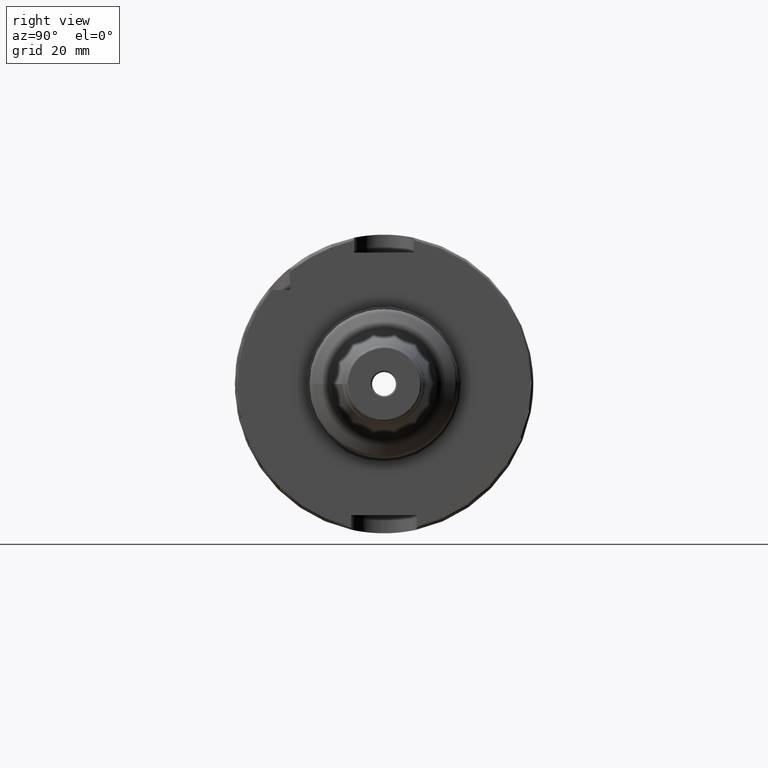
[diagram: clean part render]
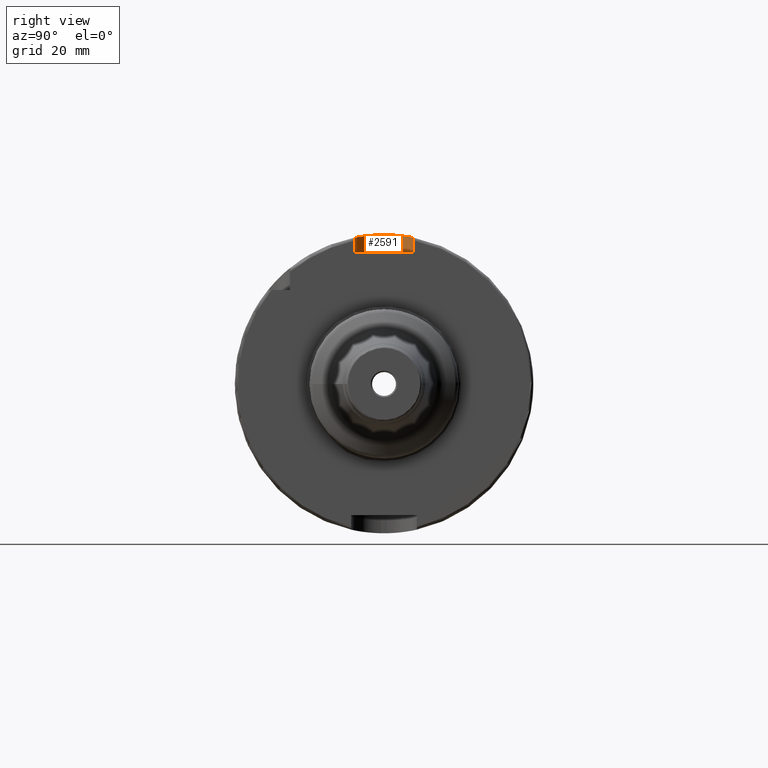
[diagram: same view with one face highlighted and labeled with its STEP entity id]
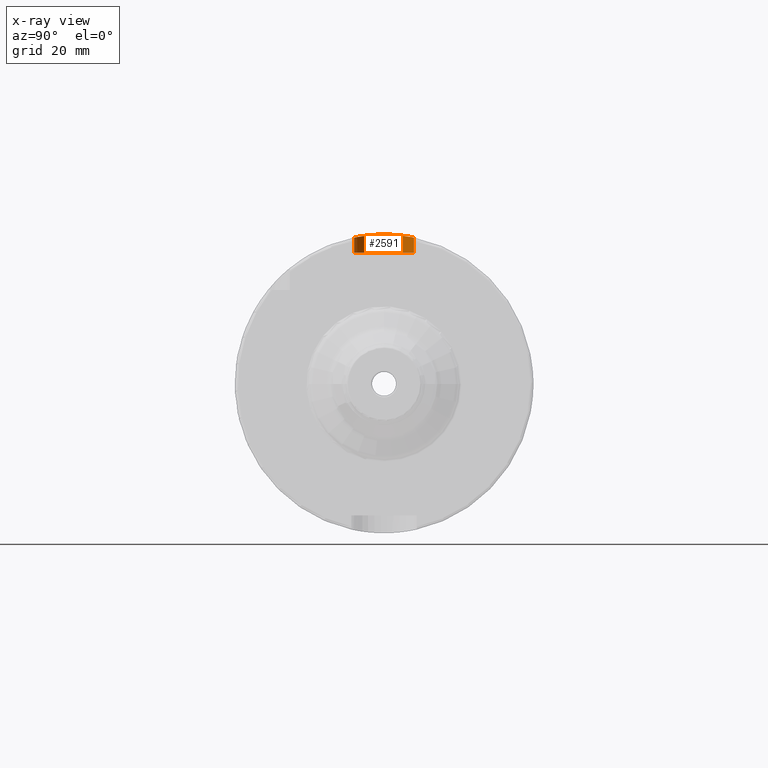
[diagram: x-ray of the same camera — body ghosted, the highlighted face saturated]
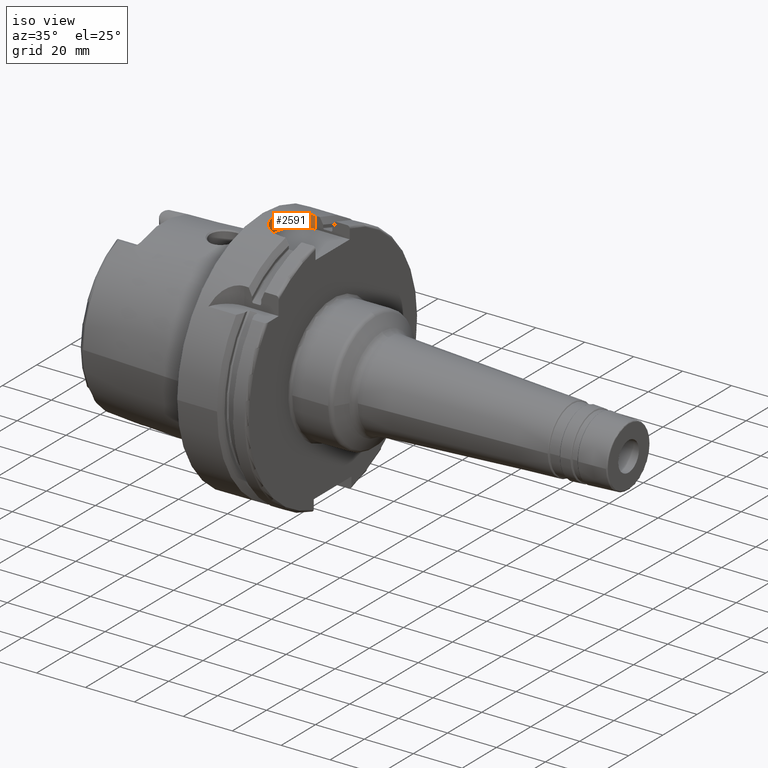
[diagram: same view with one face highlighted and labeled with its STEP entity id]
A machine part, right view. The second image highlights one B-rep face of the part: STEP entity #2591.
The next image is the same camera in x-ray: the body ghosted, the highlighted face saturated — about 0% of this face is hidden behind the body in this view.
A second angle (iso view) of the same face is appended — the face is thin or edge-on in the first view.
In plain terms, the highlighted cylindrical surface (edge-blend (fillet) strip) has radius 10 mm, axis along (0, 0, 1).
Its self-contained STEP definition (entity closure, byte-faithful):
#65=B_SPLINE_CURVE_WITH_KNOTS('',3,(#5050,#5051,#5052,#5053,#5054,#5055,
#5056,#5057,#5058,#5059,#5060,#5061,#5062,#5063,#5064,#5065,#5066,#5067),
 .UNSPECIFIED.,.F.,.F.,(4,2,2,2,2,2,2,2,4),(0.,0.377795255890194,0.755590511780389,
1.13336459804459,1.51113868430879,1.88891277057299,2.26668685683718,2.64448211272738,
3.02227736861757),.UNSPECIFIED.);
#258=LINE('',#5360,#372);
#259=LINE('',#5364,#373);
#372=VECTOR('',#3628,10.);
#373=VECTOR('',#3633,10.);
#415=CYLINDRICAL_SURFACE('',#2914,10.);
#514=FACE_OUTER_BOUND('',#655,.T.);
#655=EDGE_LOOP('',(#2210,#2211,#2212,#2213));
#871=CIRCLE('',#2915,10.);
#1128=VERTEX_POINT('',#5047);
#1129=VERTEX_POINT('',#5049);
#1176=VERTEX_POINT('',#5358);
#1177=VERTEX_POINT('',#5362);
#1472=EDGE_CURVE('',#1128,#1129,#65,.T.);
#1549=EDGE_CURVE('',#1176,#1128,#258,.T.);
#1550=EDGE_CURVE('',#1177,#1176,#871,.T.);
#1551=EDGE_CURVE('',#1177,#1129,#259,.T.);
#2210=ORIENTED_EDGE('',*,*,#1472,.F.);
#2211=ORIENTED_EDGE('',*,*,#1549,.F.);
#2212=ORIENTED_EDGE('',*,*,#1550,.F.);
#2213=ORIENTED_EDGE('',*,*,#1551,.T.);
#2591=ADVANCED_FACE('',(#514),#415,.F.);
#2914=AXIS2_PLACEMENT_3D('',#5361,#3629,#3630);
#2915=AXIS2_PLACEMENT_3D('',#5363,#3631,#3632);
#3628=DIRECTION('',(0.,0.,1.));
#3629=DIRECTION('center_axis',(0.,0.,1.));
#3630=DIRECTION('ref_axis',(0.,1.,0.));
#3631=DIRECTION('center_axis',(0.,0.,1.));
#3632=DIRECTION('ref_axis',(0.,1.,0.));
#3633=DIRECTION('',(0.,0.,1.));
#5047=CARTESIAN_POINT('',(15.,-10.,48.9897948556636));
#5049=CARTESIAN_POINT('',(15.,10.,48.9897948556636));
#5050=CARTESIAN_POINT('Ctrl Pts',(15.,-10.,48.9897948556636));
#5051=CARTESIAN_POINT('Ctrl Pts',(13.740682480366,-10.,48.9897948556636));
#5052=CARTESIAN_POINT('Ctrl Pts',(12.3998222283811,-9.74762796248614,49.0433876618447));
#5053=CARTESIAN_POINT('Ctrl Pts',(9.93707994969945,-8.72605417648382,49.2354150792771));
#5054=CARTESIAN_POINT('Ctrl Pts',(8.81489539818993,-7.95703102192089,49.3709085101933));
#5055=CARTESIAN_POINT('Ctrl Pts',(7.04301862271998,-6.18515424645094,49.6240337638318));
#5056=CARTESIAN_POINT('Ctrl Pts',(6.27395658455242,-5.06294861197626,49.7583347151863));
#5057=CARTESIAN_POINT('Ctrl Pts',(5.25235457764165,-2.60013306081865,49.9476188647081));
#5058=CARTESIAN_POINT('Ctrl Pts',(4.99999999999999,-1.259246954214,50.));
#5059=CARTESIAN_POINT('Ctrl Pts',(4.99999999999999,1.259246954214,50.));
#5060=CARTESIAN_POINT('Ctrl Pts',(5.25235457764165,2.60013306081865,49.9476188647081));
#5061=CARTESIAN_POINT('Ctrl Pts',(6.27395658455242,5.06294861197626,49.7583347151863));
#5062=CARTESIAN_POINT('Ctrl Pts',(7.04301862271998,6.18515424645094,49.6240337638318));
#5063=CARTESIAN_POINT('Ctrl Pts',(8.81489539818993,7.95703102192089,49.3709085101933));
#5064=CARTESIAN_POINT('Ctrl Pts',(9.93707994969945,8.72605417648382,49.2354150792771));
#5065=CARTESIAN_POINT('Ctrl Pts',(12.3998222283811,9.74762796248614,49.0433876618447));
#5066=CARTESIAN_POINT('Ctrl Pts',(13.740682480366,10.,48.9897948556636));
#5067=CARTESIAN_POINT('Ctrl Pts',(15.,10.,48.9897948556636));
#5358=CARTESIAN_POINT('',(15.,-10.,44.));
#5360=CARTESIAN_POINT('',(15.,-10.,44.));
#5361=CARTESIAN_POINT('Origin',(15.,0.,44.));
#5362=CARTESIAN_POINT('',(15.,10.,44.));
#5363=CARTESIAN_POINT('Origin',(15.,0.,44.));
#5364=CARTESIAN_POINT('',(15.,10.,44.));